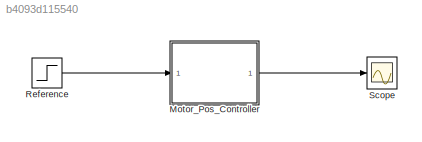
MODEL slx_b4093d115540
KIND model
CONFIG AbsTol = auto
CONFIG EnableMultiTasking = off
CONFIG FixedStep = auto
CONFIG MaxStep = auto
CONFIG MinStep = auto
CONFIG RelTol = 1e-3
CONFIG SampleTimeConstraint = Unconstrained
CONFIG SolverName = ode15s
CONFIG StartTime = 0.0
CONFIG StopTime = 0.2
BLOCK [ModelReference] Motor_Pos_Controller
  ModelNameDialog = Subsystem2
  ModelReferenceVersion = 1.32
  Ports = [1, 1]
BLOCK [Step] Reference 
  SampleTime = 0
  Time = 0.001
BLOCK [Scope] Scope
  Floating = off
  NumInputPorts = 1
  Ports = [1]
  ScopeSpecificationString = Simulink.scopes.TimeScopeBlockCfg('CurrentConfiguration', extmgr.ConfigurationSet(extmgr.Configuration('Core','General UI',true),extmgr.Configuration('Core','Source UI',true),extmgr.Configuration('Sources','WiredSimulink',true,'DataLoggingVariableName','ScopeData1'),extmgr.Configuration('Visuals','Time Domain',true,'SerializedDisplays',{struct('MinYLimReal','-3.59154','MaxYLimReal','12.81068','YLa...<+1401ch>
LINE Motor_Pos_Controller:1 -> Scope:1
LINE Reference :1 -> Motor_Pos_Controller:1
